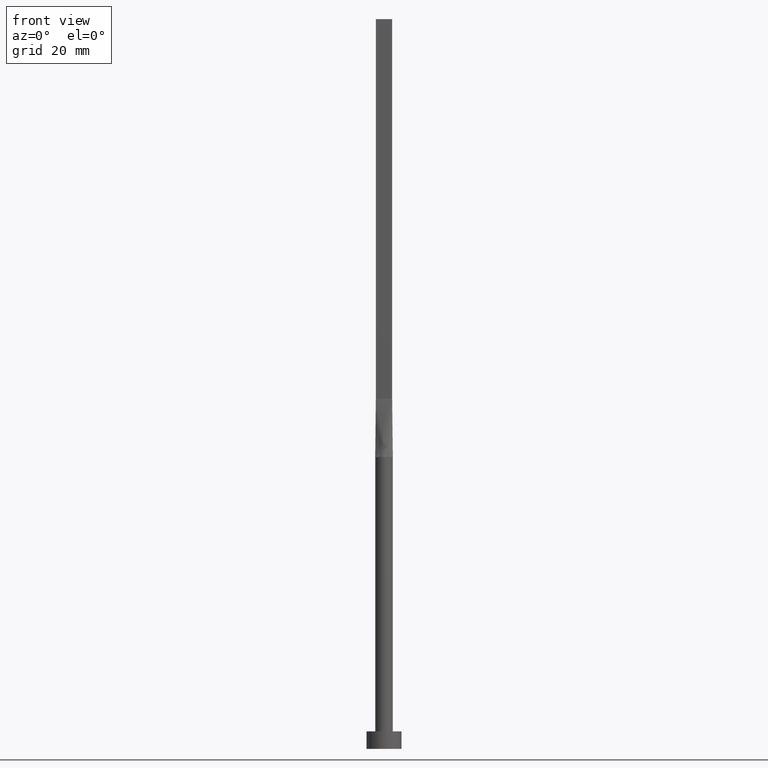
[diagram: clean part render]
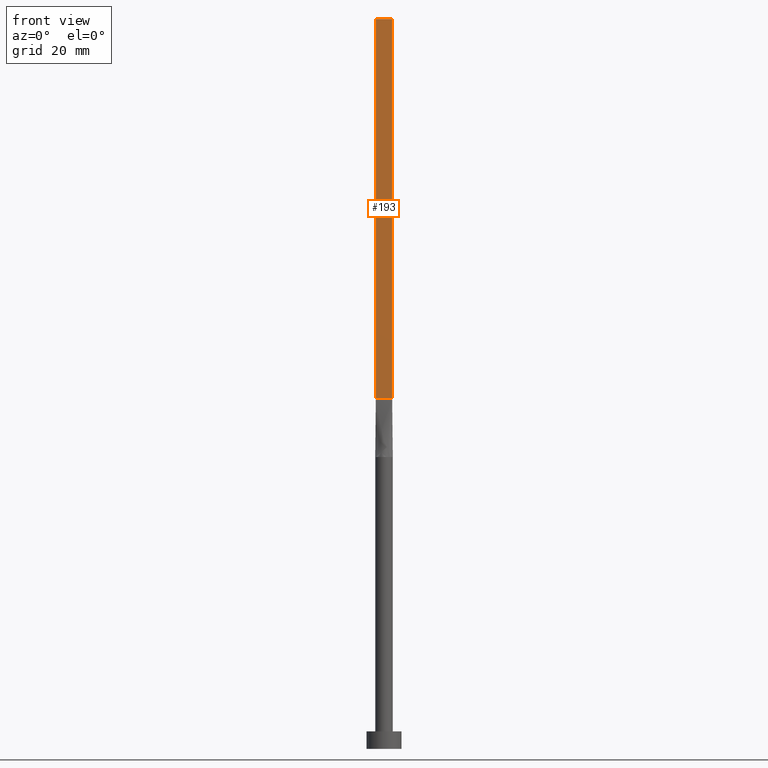
[diagram: same view with one face highlighted and labeled with its STEP entity id]
A machine part, front view. The second image highlights one B-rep face of the part: STEP entity #193.
In plain terms, the highlighted planar face has unit normal (0, 1, -0).
Its self-contained STEP definition (entity closure, byte-faithful):
#3 = LINE ( 'NONE', #353, #119 ) ;
#16 = ORIENTED_EDGE ( 'NONE', *, *, #24, .F. ) ;
#24 = EDGE_CURVE ( 'NONE', #387, #574, #79, .T. ) ;
#40 = EDGE_CURVE ( 'NONE', #301, #574, #3, .T. ) ;
#48 = DIRECTION ( 'NONE',  ( 5.808225924029488744E-17, 1.000000000000000000, -0.000000000000000000 ) ) ;
#79 = LINE ( 'NONE', #272, #173 ) ;
#108 = CARTESIAN_POINT ( 'NONE',  ( -1.399999999999999911, -0.3999999999999996336, 125.0000000000000000 ) ) ;
#109 = LINE ( 'NONE', #254, #289 ) ;
#119 = VECTOR ( 'NONE', #222, 1000.000000000000000 ) ;
#121 = ORIENTED_EDGE ( 'NONE', *, *, #250, .F. ) ;
#142 = DIRECTION ( 'NONE',  ( -1.000000000000000000, 5.808225924029488744E-17, 0.000000000000000000 ) ) ;
#158 = CARTESIAN_POINT ( 'NONE',  ( -1.399999999999999911, -0.3999999999999996336, 60.00000000000000711 ) ) ;
#173 = VECTOR ( 'NONE', #488, 1000.000000000000000 ) ;
#193 = ADVANCED_FACE ( 'NONE', ( #498 ), #277, .F. ) ;
#222 = DIRECTION ( 'NONE',  ( 1.000000000000000000, -5.808225924029488744E-17, 0.000000000000000000 ) ) ;
#224 = DIRECTION ( 'NONE',  ( -0.000000000000000000, -0.000000000000000000, -1.000000000000000000 ) ) ;
#250 = EDGE_CURVE ( 'NONE', #311, #387, #109, .T. ) ;
#254 = CARTESIAN_POINT ( 'NONE',  ( -1.399999999999999911, -0.3999999999999996336, 125.0000000000000000 ) ) ;
#263 = CARTESIAN_POINT ( 'NONE',  ( -1.399999999999999911, -0.3999999999999996336, 125.0000000000000000 ) ) ;
#272 = CARTESIAN_POINT ( 'NONE',  ( 1.399999999999999911, -0.3999999999999998002, 125.0000000000000000 ) ) ;
#277 = PLANE ( 'NONE',  #557 ) ;
#289 = VECTOR ( 'NONE', #382, 1000.000000000000000 ) ;
#301 = VERTEX_POINT ( 'NONE', #158 ) ;
#311 = VERTEX_POINT ( 'NONE', #108 ) ;
#353 = CARTESIAN_POINT ( 'NONE',  ( -1.399999999999999911, -0.3999999999999996336, 60.00000000000000711 ) ) ;
#382 = DIRECTION ( 'NONE',  ( 1.000000000000000000, -5.808225924029488744E-17, 0.000000000000000000 ) ) ;
#387 = VERTEX_POINT ( 'NONE', #579 ) ;
#436 = LINE ( 'NONE', #263, #495 ) ;
#440 = CARTESIAN_POINT ( 'NONE',  ( 1.399999999999999911, -0.3999999999999998002, 60.00000000000000711 ) ) ;
#488 = DIRECTION ( 'NONE',  ( -0.000000000000000000, -0.000000000000000000, -1.000000000000000000 ) ) ;
#495 = VECTOR ( 'NONE', #224, 1000.000000000000000 ) ;
#497 = CARTESIAN_POINT ( 'NONE',  ( -1.399999999999999911, -0.3999999999999996336, 125.0000000000000000 ) ) ;
#498 = FACE_OUTER_BOUND ( 'NONE', #556, .T. ) ;
#507 = EDGE_CURVE ( 'NONE', #311, #301, #436, .T. ) ;
#510 = ORIENTED_EDGE ( 'NONE', *, *, #507, .T. ) ;
#537 = ORIENTED_EDGE ( 'NONE', *, *, #40, .T. ) ;
#556 = EDGE_LOOP ( 'NONE', ( #537, #16, #121, #510 ) ) ;
#557 = AXIS2_PLACEMENT_3D ( 'NONE', #497, #48, #142 ) ;
#574 = VERTEX_POINT ( 'NONE', #440 ) ;
#579 = CARTESIAN_POINT ( 'NONE',  ( 1.399999999999999911, -0.3999999999999998002, 125.0000000000000000 ) ) ;